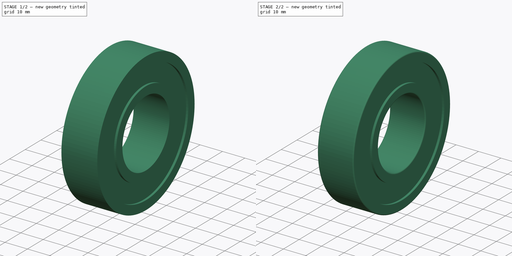
[diagram: build sequence overview — one tinted view per stage of 2, left to right]
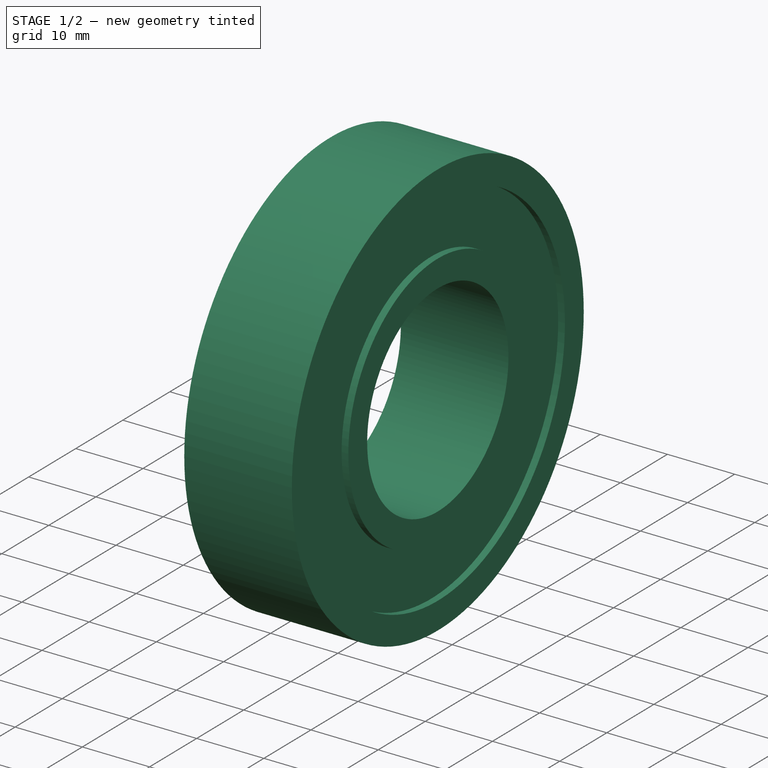
[diagram: stage 1 of 2 — iso view after this stage's code; geometry added in this stage tinted green]
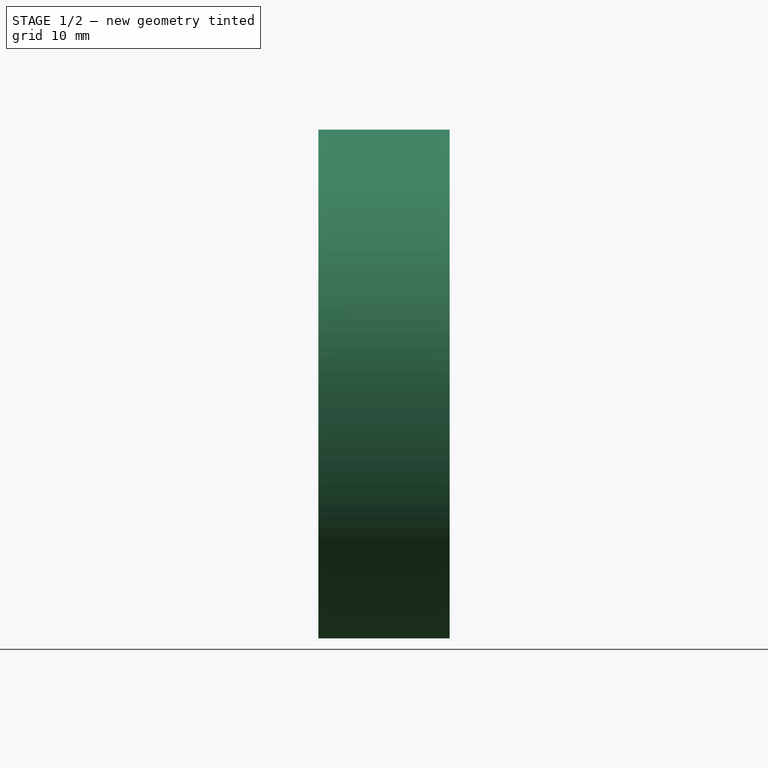
[diagram: stage 1 of 2 — front view after this stage's code; geometry added in this stage tinted green]
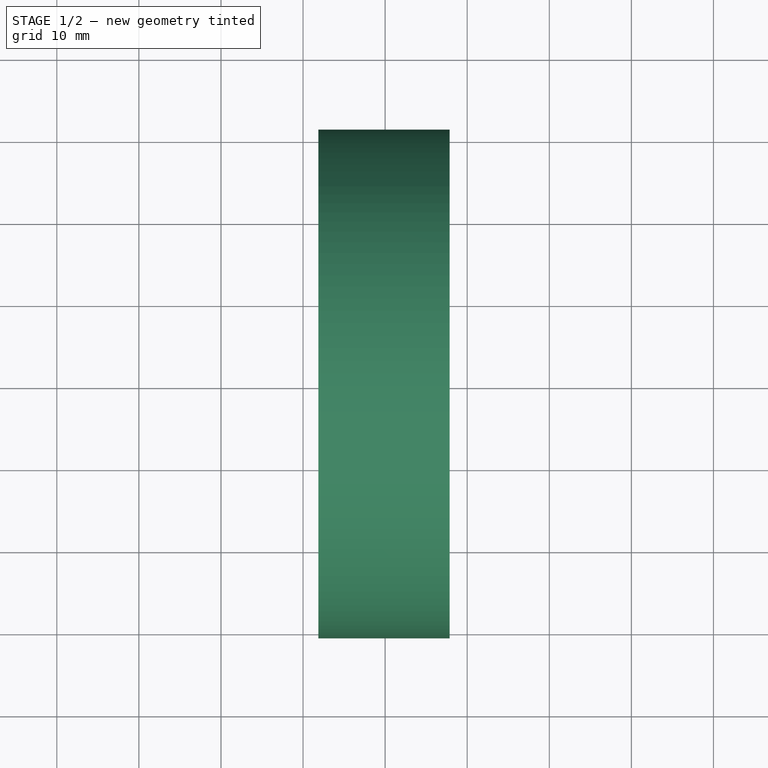
[diagram: stage 1 of 2 — top view after this stage's code; geometry added in this stage tinted green]
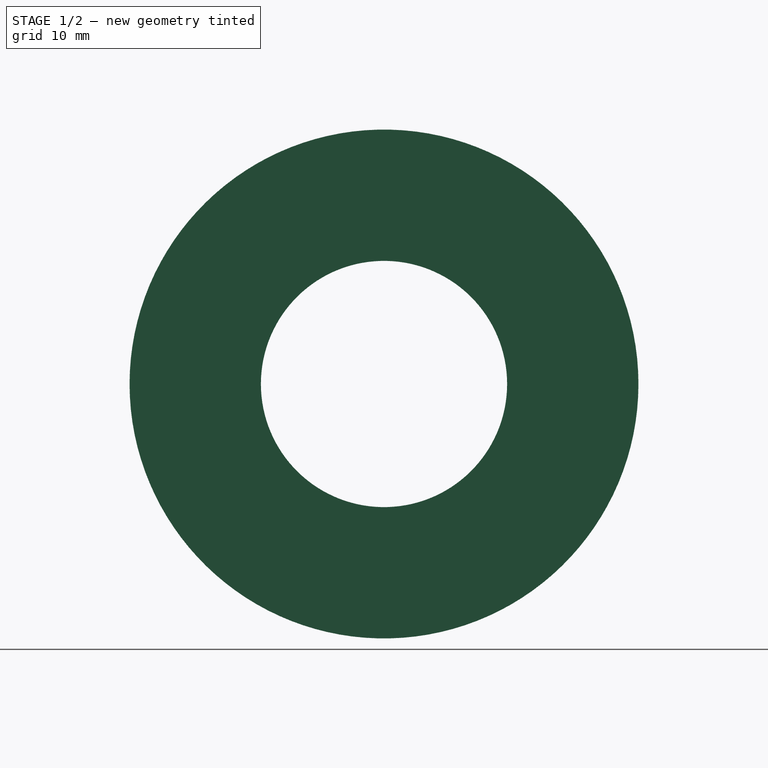
[diagram: stage 1 of 2 — right view after this stage's code; geometry added in this stage tinted green]
FCSTD DOCUMENT  (FreeCAD 0.18R16146 (Git))
Label: vp4001
License: All rights reserved
LicenseURL: http://en.wikipedia.org/wiki/All_rights_reserved
objects: Sketcher::SketchObject×1, PartDesign::Revolution×1, PartDesign::Fillet×1, PartDesign::Body×1
note: 5 computed .brp shape members not serialized (recipe doc carries the construction recipe); baked Part::Feature solids carry a one-line shape summary decoded from their .brp

FEATURE [Sketcher::SketchObject] Sketch
  MapMode = 5
  Support = -> [XY_Plane]
  sketch-geometry (12):
    g0: LineSegment StartX=-2.13844 StartY=31 StartZ=0 EndX=-18.1384 EndY=31 EndZ=0
    g1: LineSegment StartX=-18.1384 StartY=31 StartZ=0 EndX=-18.1384 EndY=27 EndZ=0
    g2: LineSegment StartX=-18.1384 StartY=27 StartZ=0 EndX=-17.1384 EndY=27 EndZ=0
    g3: LineSegment StartX=-17.1384 StartY=27 StartZ=0 EndX=-17.1384 EndY=19 EndZ=0
    g4: LineSegment StartX=-17.1384 StartY=19 StartZ=0 EndX=-18.1384 EndY=19 EndZ=0
    g5: LineSegment StartX=-18.1384 StartY=19 StartZ=0 EndX=-18.1384 EndY=15 EndZ=0
    g6: LineSegment StartX=-18.1384 StartY=15 StartZ=0 EndX=-2.13844 EndY=15 EndZ=0
    g7: LineSegment StartX=-2.13844 StartY=15 StartZ=0 EndX=-2.13844 EndY=19 EndZ=0
    g8: LineSegment StartX=-2.13844 StartY=19 StartZ=0 EndX=-3.13844 EndY=19 EndZ=0
    g9: LineSegment StartX=-3.13844 StartY=19 StartZ=0 EndX=-3.13844 EndY=27 EndZ=0
    g10: LineSegment StartX=-3.13844 StartY=27 StartZ=0 EndX=-2.13844 EndY=27 EndZ=0
    g11: LineSegment StartX=-2.13844 StartY=27 StartZ=0 EndX=-2.13844 EndY=31 EndZ=0
  constraints (35):
    c: Horizontal(g0)
    c: Coincident(g1,g0)
    c: Vertical(g1)
    c: Coincident(g2,g1)
    c: Horizontal(g2)
    c: Coincident(g3,g2)
    c: Vertical(g3)
    c: Coincident(g4,g3)
    c: Horizontal(g4)
    c: Coincident(g5,g4)
    c: Coincident(g6,g5)
    c: Horizontal(g6)
    c: Coincident(g7,g6)
    c: Vertical(g7)
    c: Coincident(g8,g7)
    c: Vertical(g9)
    c: Coincident(g10,g9)
    c: Coincident(g11,g10)
    c: Coincident(g11,g0)
    c: Equal(g0,g6)
    c: Equal(g4,g2)
    c: Equal(g2,g10)
    c: Equal(g10,g8)
    c: Horizontal(g10)
    c: Coincident(g8,g9)
    c: Horizontal(g8)
    c: Vertical(g5)
    c: PointOnObject(g2,g10)
    c: PointOnObject(g3,g8)
    c: DistanceX(g0,g0) = 16
    c: DistanceX(g0,g2) = 1
    c: DistanceY(g-1,g6) = 15
    c: DistanceY(g-1,g0) = 31
    c: Equal(g7,g11)
    c: DistanceY(g7,g7) = 4
FEATURE [PartDesign::Revolution] Revolution
  Angle = 360
  Axis = (1,0,0)
  Base = (0,0,0)
  Profile = -> Sketch
  ReferenceAxis = -> X_Axis
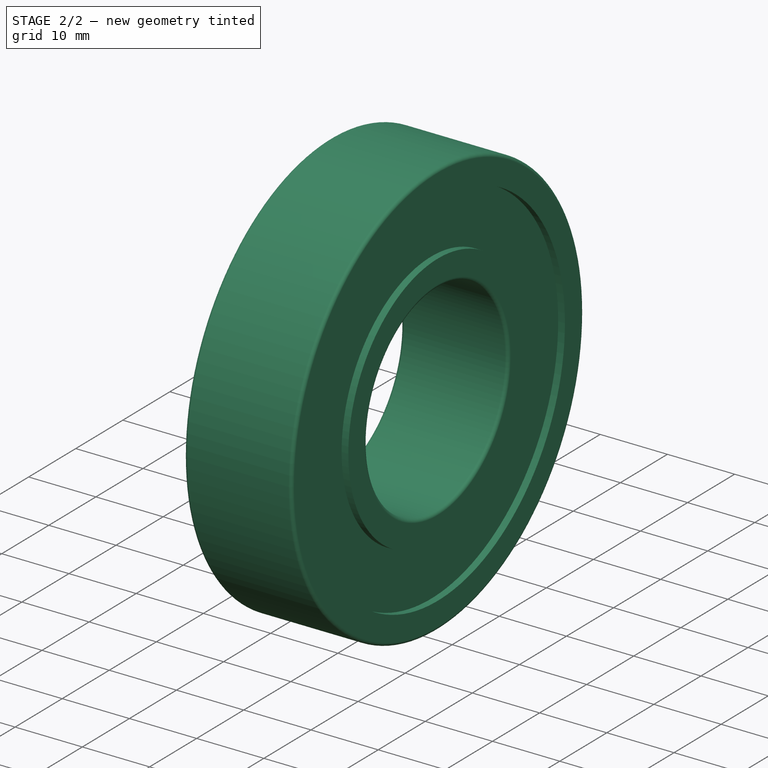
[diagram: stage 2 of 2 — iso view after this stage's code; geometry added in this stage tinted green]
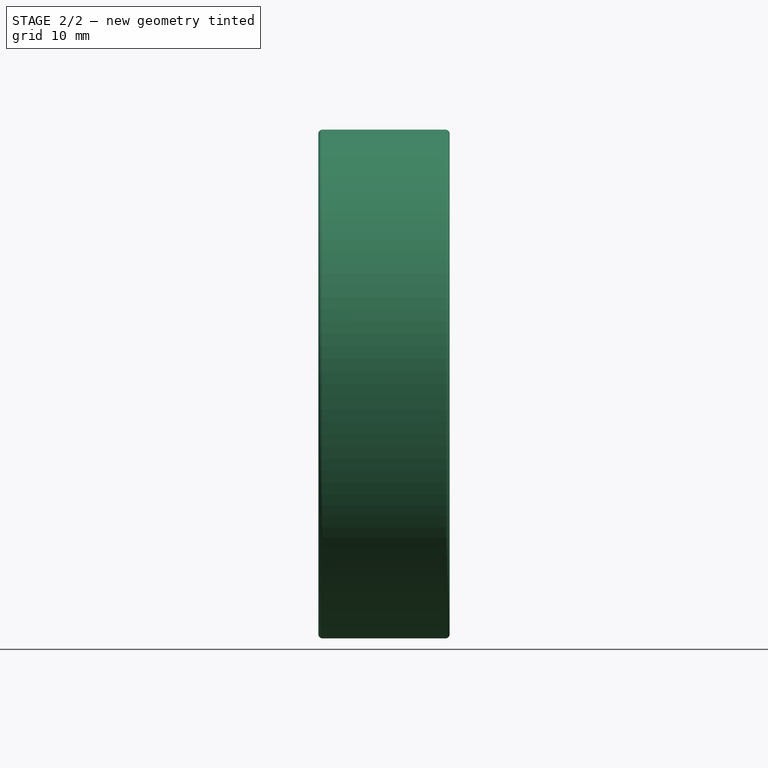
[diagram: stage 2 of 2 — front view after this stage's code; geometry added in this stage tinted green]
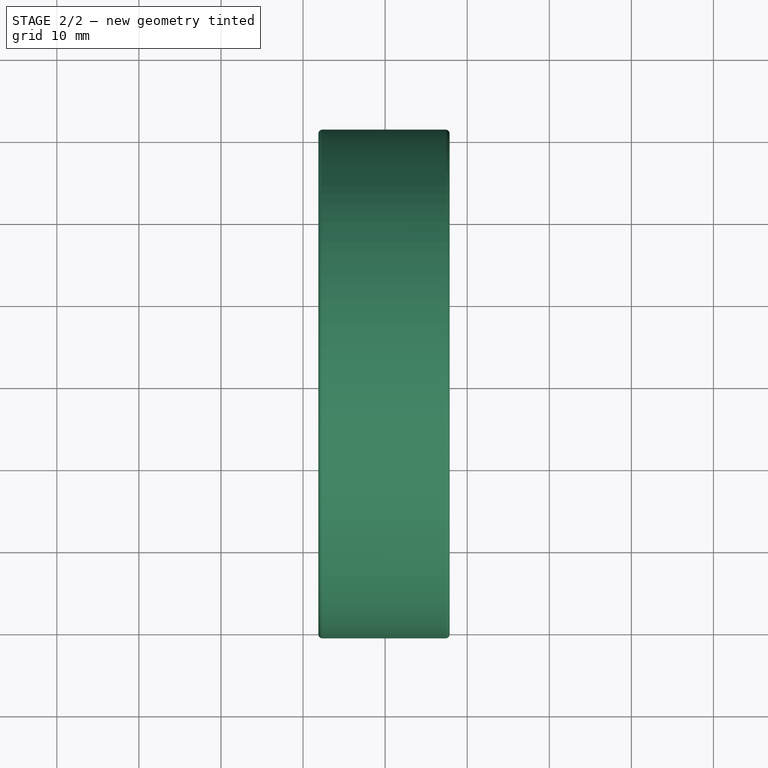
[diagram: stage 2 of 2 — top view after this stage's code; geometry added in this stage tinted green]
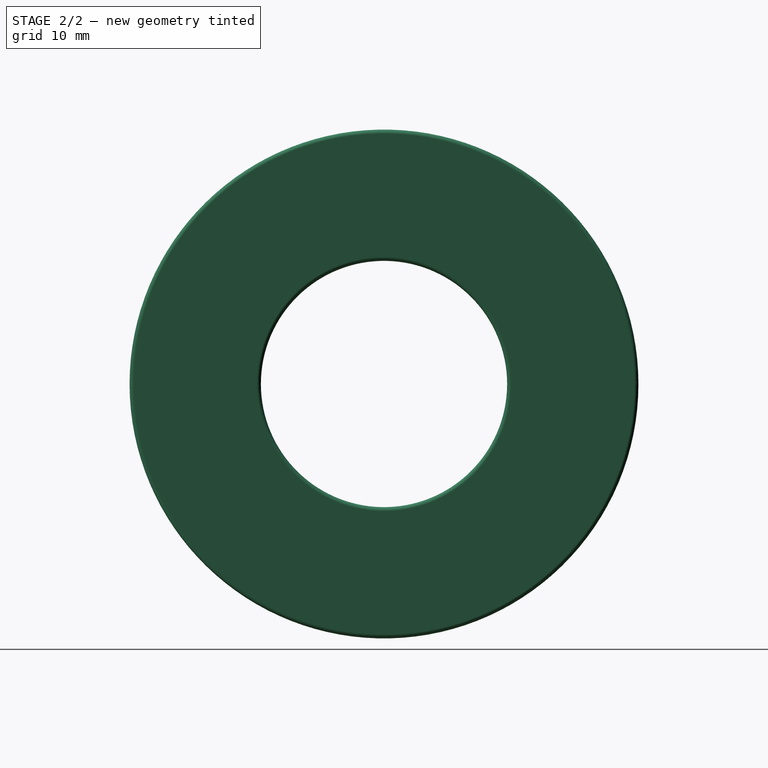
[diagram: stage 2 of 2 — right view after this stage's code; geometry added in this stage tinted green]
FEATURE [PartDesign::Fillet] Fillet
  Base = -> Revolution [Edge1,Edge11,Edge2,Edge10]
  BaseFeature = -> Revolution
  Radius = 0.5
FEATURE [PartDesign::Body] Body
  Group = -> [Sketch,Revolution,Fillet]
  Origin = -> Origin
  Tip = -> Fillet
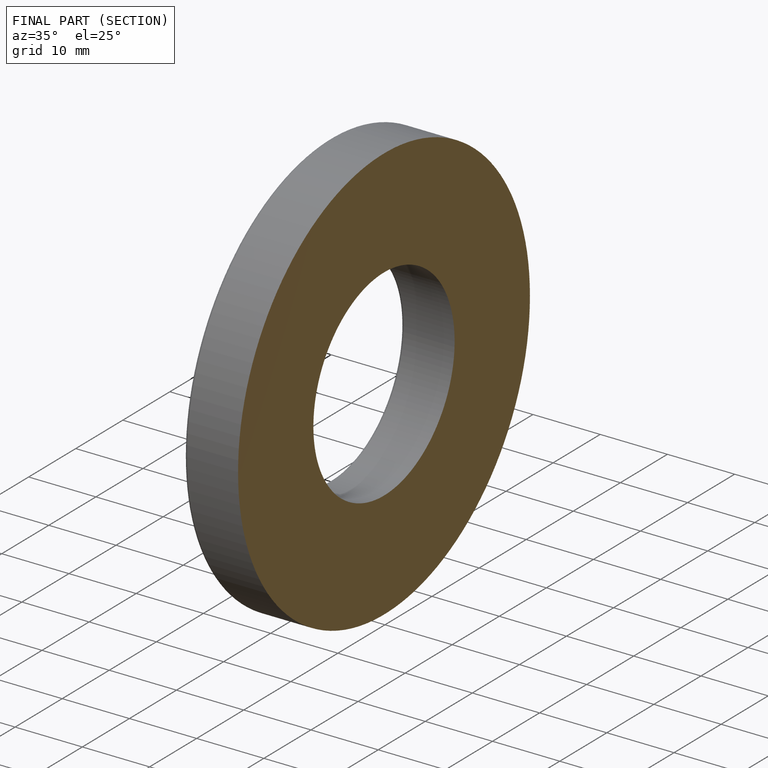
[diagram: finished part — half-section view (interior)]
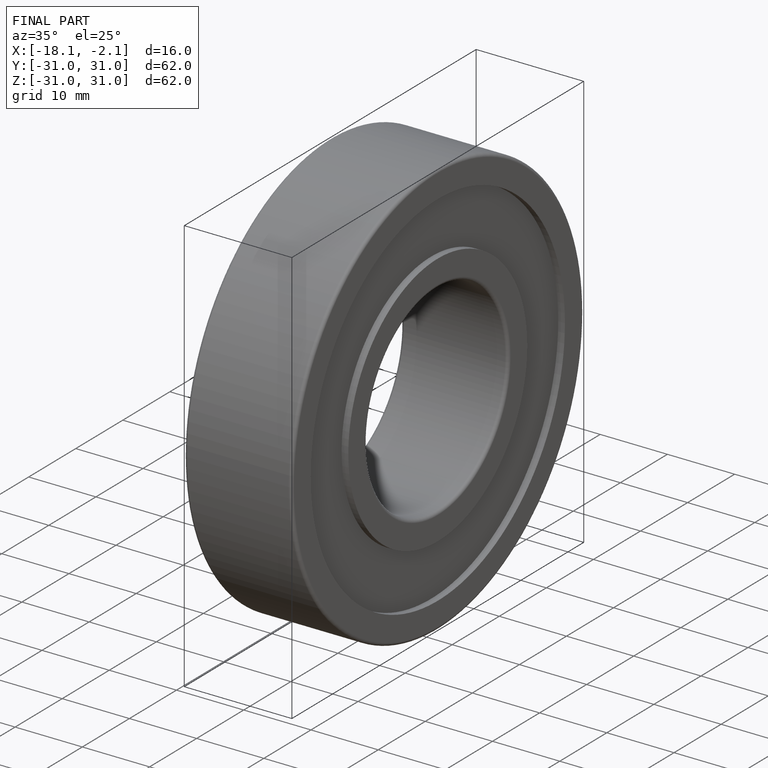
[diagram: finished part — iso view with bounding-box wireframe]
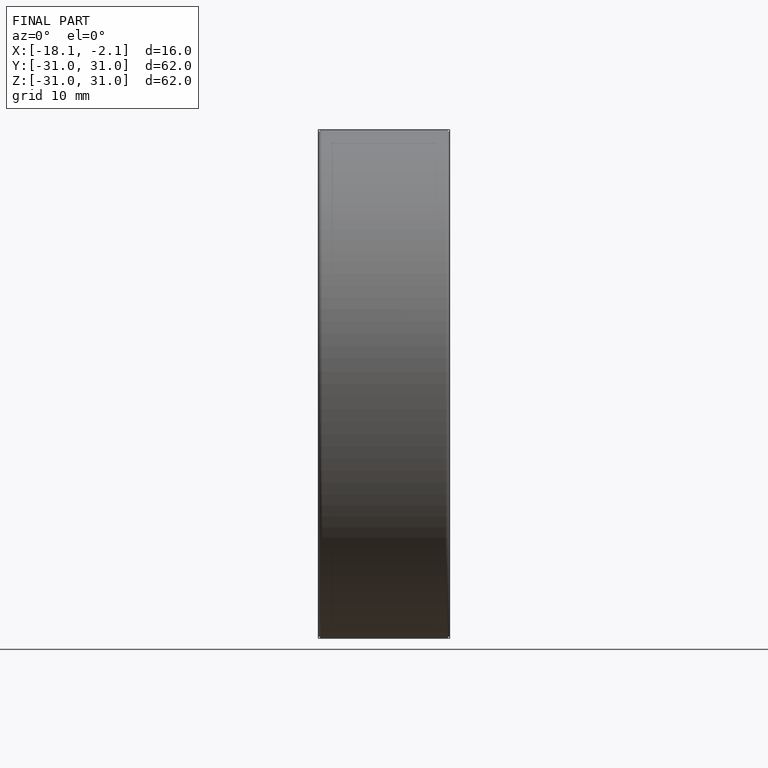
[diagram: finished part — front view with bounding-box wireframe]
